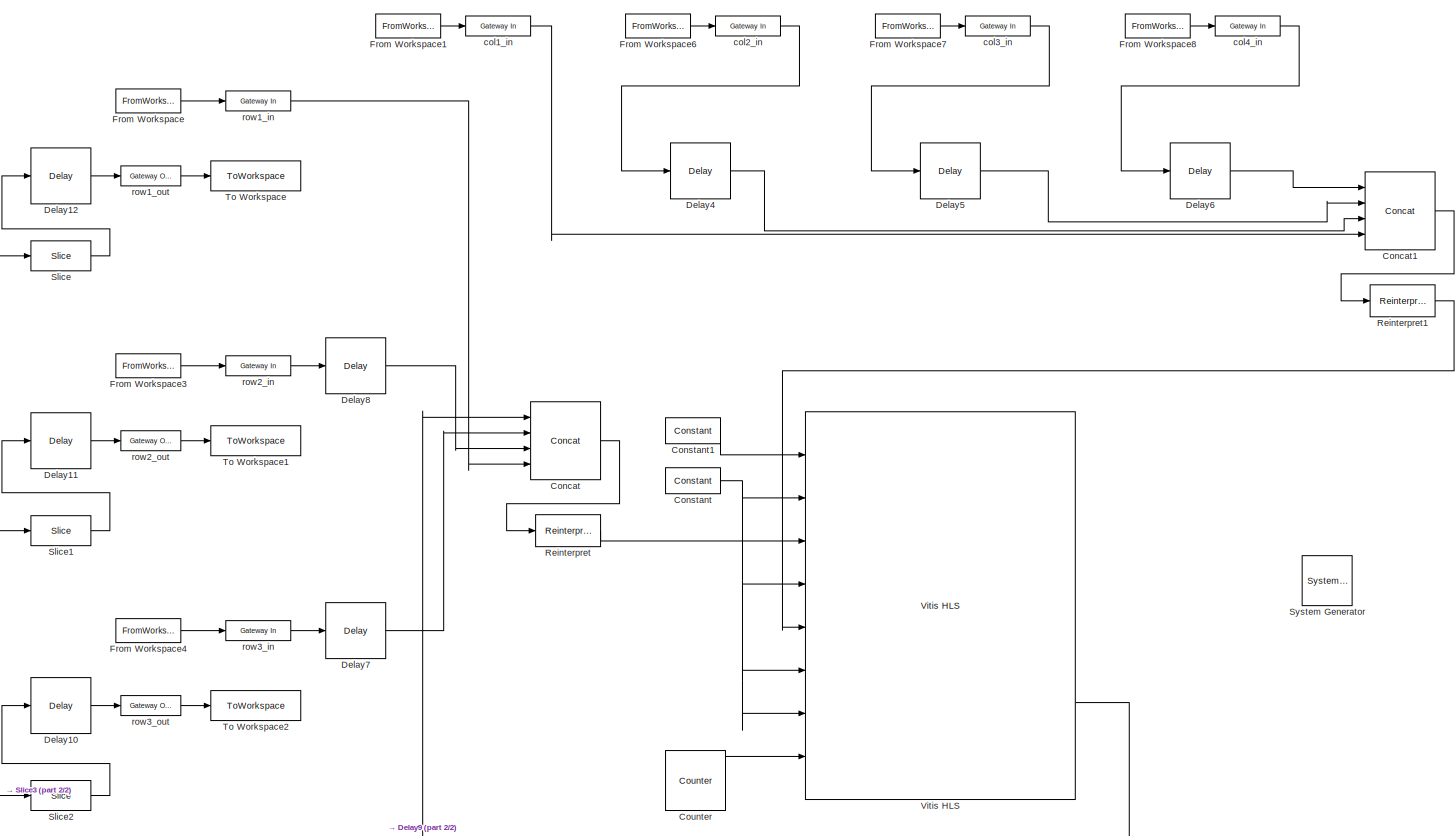
[diagram: root canvas - part 1/2, most of the canvas]
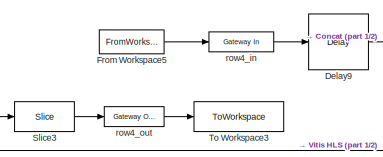
[diagram: root canvas - part 2/2, bottom left region]
MODEL slx_1addaa1f4e59
KIND model
CONFIG AbsTol = auto
CONFIG EnableMultiTasking = off
CONFIG FixedStep = auto
CONFIG MaxStep = auto
CONFIG MinStep = auto
CONFIG RelTol = 1e-3
CONFIG SampleTimeConstraint = Unconstrained
CONFIG SolverName = VariableStepAuto
CONFIG StartTime = 0.0
CONFIG StopTime = 100
BLOCK [Reference]  System Generator  REF=xbsIndex_r4/ System Generator
  AttributesFormatString = System\nGenerator
  Ports = []
  SourceBlock = xbsIndex_r4/ System Generator
  SourceType = Xilinx System Generator Block
  Tag = genX
  UserDataPersistent = on
BLOCK [Reference] Concat  REF=hdlBasic/Concat
  Ports = [4, 1]
  SourceBlock = hdlBasic/Concat
  SourceType = Bus Concatenator Block
BLOCK [Reference] Concat1  REF=hdlBasic/Concat
  Ports = [4, 1]
  SourceBlock = hdlBasic/Concat
  SourceType = Bus Concatenator Block
BLOCK [Reference] Constant  REF=hdlBasic/Constant
  Ports = [0, 1]
  SourceBlock = hdlBasic/Constant
  SourceType = Constant Block Block
BLOCK [Reference] Constant1  REF=hdlBasic/Constant
  Ports = [0, 1]
  SourceBlock = hdlBasic/Constant
  SourceType = Constant Block Block
BLOCK [Reference] Counter  REF=hdlBasic/Counter
  Ports = [0, 1]
  SourceBlock = hdlBasic/Counter
  SourceType = Counter Block
BLOCK [Reference] Delay10  REF=hdlBasic/Delay
  Ports = [1, 1]
  SourceBlock = hdlBasic/Delay
  SourceType = Delay Block
BLOCK [Reference] Delay11  REF=hdlBasic/Delay
  Ports = [1, 1]
  SourceBlock = hdlBasic/Delay
  SourceType = Delay Block
BLOCK [Reference] Delay12  REF=hdlBasic/Delay
  Ports = [1, 1]
  SourceBlock = hdlBasic/Delay
  SourceType = Delay Block
BLOCK [Reference] Delay4  REF=hdlBasic/Delay
  Ports = [1, 1]
  SourceBlock = hdlBasic/Delay
  SourceType = Delay Block
BLOCK [Reference] Delay5  REF=hdlBasic/Delay
  Ports = [1, 1]
  SourceBlock = hdlBasic/Delay
  SourceType = Delay Block
BLOCK [Reference] Delay6  REF=hdlBasic/Delay
  Ports = [1, 1]
  SourceBlock = hdlBasic/Delay
  SourceType = Delay Block
BLOCK [Reference] Delay7  REF=hdlBasic/Delay
  Ports = [1, 1]
  SourceBlock = hdlBasic/Delay
  SourceType = Delay Block
BLOCK [Reference] Delay8  REF=hdlBasic/Delay
  Ports = [1, 1]
  SourceBlock = hdlBasic/Delay
  SourceType = Delay Block
BLOCK [Reference] Delay9  REF=hdlBasic/Delay
  Ports = [1, 1]
  SourceBlock = hdlBasic/Delay
  SourceType = Delay Block
BLOCK [FromWorkspace] From Workspace
  VariableName = row1_in
BLOCK [FromWorkspace] From Workspace1
  VariableName = col1_in
BLOCK [FromWorkspace] From Workspace3
  VariableName = row2_in
BLOCK [FromWorkspace] From Workspace4
  VariableName = row3_in
BLOCK [FromWorkspace] From Workspace5
  VariableName = row4_in
BLOCK [FromWorkspace] From Workspace6
  VariableName = col2_in
BLOCK [FromWorkspace] From Workspace7
  VariableName = col3_in
BLOCK [FromWorkspace] From Workspace8
  VariableName = col4_in
BLOCK [Reference] Reinterpret  REF=hdlBasic/Reinterpret
  Ports = [1, 1]
  SourceBlock = hdlBasic/Reinterpret
  SourceType = Type Reinterpreter Block
BLOCK [Reference] Reinterpret1  REF=hdlBasic/Reinterpret
  Ports = [1, 1]
  SourceBlock = hdlBasic/Reinterpret
  SourceType = Type Reinterpreter Block
BLOCK [Reference] Slice  REF=hdlBasic/Slice
  Ports = [1, 1]
  SourceBlock = hdlBasic/Slice
  SourceType = Bit Slice Extractor Block
BLOCK [Reference] Slice1  REF=hdlBasic/Slice
  Ports = [1, 1]
  SourceBlock = hdlBasic/Slice
  SourceType = Bit Slice Extractor Block
BLOCK [Reference] Slice2  REF=hdlBasic/Slice
  Ports = [1, 1]
  SourceBlock = hdlBasic/Slice
  SourceType = Bit Slice Extractor Block
BLOCK [Reference] Slice3  REF=hdlBasic/Slice
  Ports = [1, 1]
  SourceBlock = hdlBasic/Slice
  SourceType = Bit Slice Extractor Block
BLOCK [ToWorkspace] To Workspace
  FixptAsFi = on
  MaxDataPoints = inf
  Ports = [1]
  SampleTime = -1
  SaveFormat = Timeseries
  VariableName = row1_out
BLOCK [ToWorkspace] To Workspace1
  FixptAsFi = on
  MaxDataPoints = inf
  Ports = [1]
  SampleTime = -1
  SaveFormat = Timeseries
  VariableName = row2_out
BLOCK [ToWorkspace] To Workspace2
  FixptAsFi = on
  MaxDataPoints = inf
  Ports = [1]
  SampleTime = -1
  SaveFormat = Timeseries
  VariableName = row3_out
BLOCK [ToWorkspace] To Workspace3
  FixptAsFi = on
  MaxDataPoints = inf
  Ports = [1]
  SampleTime = -1
  SaveFormat = Timeseries
  VariableName = row4_out
BLOCK [Reference] Vitis HLS  REF=hdlBasic/Vitis HLS
  Ports = [8, 7]
  SourceBlock = hdlBasic/Vitis HLS
  SourceType = Xilinx High Level Synthesis Block
BLOCK [Reference] col1_in  REF=hdlBasic/Gateway In
  Ports = [1, 1]
  SourceBlock = hdlBasic/Gateway In
  SourceType = Gateway In Block
BLOCK [Reference] col2_in  REF=hdlBasic/Gateway In
  Ports = [1, 1]
  SourceBlock = hdlBasic/Gateway In
  SourceType = Gateway In Block
BLOCK [Reference] col3_in  REF=hdlBasic/Gateway In
  Ports = [1, 1]
  SourceBlock = hdlBasic/Gateway In
  SourceType = Gateway In Block
BLOCK [Reference] col4_in  REF=hdlBasic/Gateway In
  Ports = [1, 1]
  SourceBlock = hdlBasic/Gateway In
  SourceType = Gateway In Block
BLOCK [Reference] row1_in  REF=hdlBasic/Gateway In
  Ports = [1, 1]
  SourceBlock = hdlBasic/Gateway In
  SourceType = Gateway In Block
BLOCK [Reference] row1_out  REF=hdlBasic/Gateway Out
  Ports = [1, 1]
  SourceBlock = hdlBasic/Gateway Out
  SourceType = Gateway Out Block
BLOCK [Reference] row2_in  REF=hdlBasic/Gateway In
  Ports = [1, 1]
  SourceBlock = hdlBasic/Gateway In
  SourceType = Gateway In Block
BLOCK [Reference] row2_out  REF=hdlBasic/Gateway Out
  Ports = [1, 1]
  SourceBlock = hdlBasic/Gateway Out
  SourceType = Gateway Out Block
BLOCK [Reference] row3_in  REF=hdlBasic/Gateway In
  Ports = [1, 1]
  SourceBlock = hdlBasic/Gateway In
  SourceType = Gateway In Block
BLOCK [Reference] row3_out  REF=hdlBasic/Gateway Out
  Ports = [1, 1]
  SourceBlock = hdlBasic/Gateway Out
  SourceType = Gateway Out Block
BLOCK [Reference] row4_in  REF=hdlBasic/Gateway In
  Ports = [1, 1]
  SourceBlock = hdlBasic/Gateway In
  SourceType = Gateway In Block
BLOCK [Reference] row4_out  REF=hdlBasic/Gateway Out
  Ports = [1, 1]
  SourceBlock = hdlBasic/Gateway Out
  SourceType = Gateway Out Block
LINE Concat1:1 -> Reinterpret1:1
LINE Concat:1 -> Reinterpret:1
LINE Constant1:1 -> Vitis HLS:1
NET Constant:1 -> Vitis HLS:2, Vitis HLS:4, Vitis HLS:6, Vitis HLS:7
LINE Counter:1 -> Vitis HLS:8
LINE Delay10:1 -> row3_out:1
LINE Delay11:1 -> row2_out:1
LINE Delay12:1 -> row1_out:1
LINE Delay4:1 -> Concat1:3
LINE Delay5:1 -> Concat1:2
LINE Delay6:1 -> Concat1:1
LINE Delay7:1 -> Concat:2
LINE Delay8:1 -> Concat:3
LINE Delay9:1 -> Concat:1
LINE From Workspace1:1 -> col1_in:1
LINE From Workspace3:1 -> row2_in:1
LINE From Workspace4:1 -> row3_in:1
LINE From Workspace5:1 -> row4_in:1
LINE From Workspace6:1 -> col2_in:1
LINE From Workspace7:1 -> col3_in:1
LINE From Workspace8:1 -> col4_in:1
LINE From Workspace:1 -> row1_in:1
LINE Reinterpret1:1 -> Vitis HLS:5
LINE Reinterpret:1 -> Vitis HLS:3
LINE Slice1:1 -> Delay11:1
LINE Slice2:1 -> Delay10:1
LINE Slice3:1 -> row4_out:1
LINE Slice:1 -> Delay12:1
NET Vitis HLS:6 -> Slice1:1, Slice2:1, Slice3:1, Slice:1
LINE col1_in:1 -> Concat1:4
LINE col2_in:1 -> Delay4:1
LINE col3_in:1 -> Delay5:1
LINE col4_in:1 -> Delay6:1
LINE row1_in:1 -> Concat:4
LINE row1_out:1 -> To Workspace:1
LINE row2_in:1 -> Delay8:1
LINE row2_out:1 -> To Workspace1:1
LINE row3_in:1 -> Delay7:1
LINE row3_out:1 -> To Workspace2:1
LINE row4_in:1 -> Delay9:1
LINE row4_out:1 -> To Workspace3:1
note: NET lines group one-source signal fan-out (src -> all destinations, sorted); 1:1 wires keep LINE
